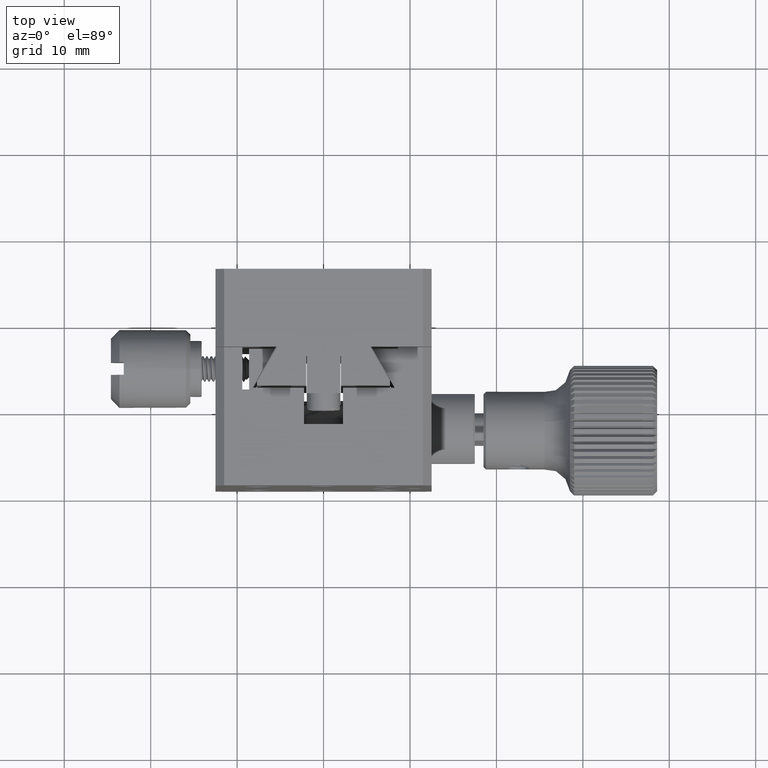
[diagram: clean part render]
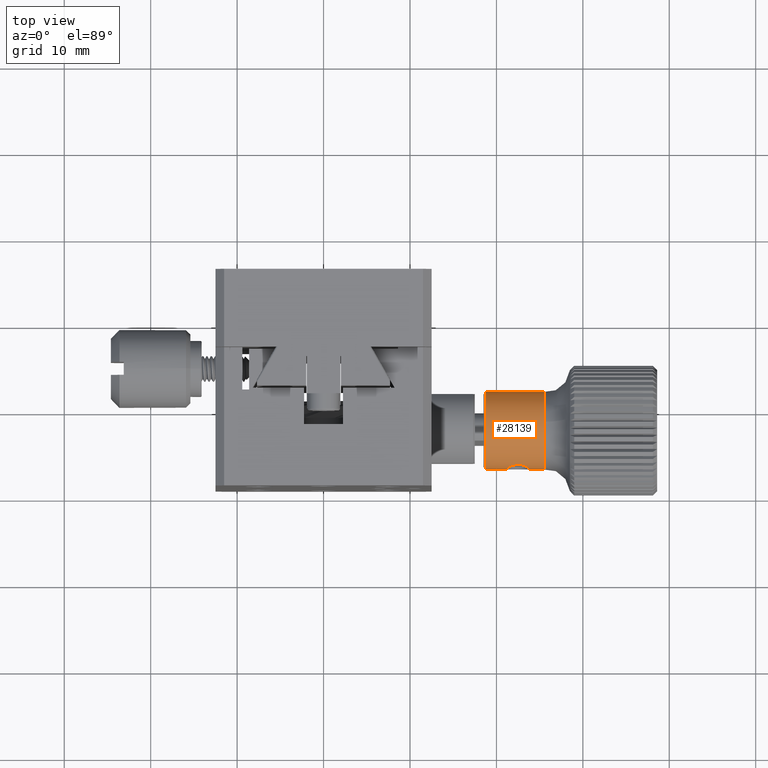
[diagram: same view with one face highlighted and labeled with its STEP entity id]
A machine part, top view. The second image highlights one B-rep face of the part: STEP entity #28139.
In plain terms, the highlighted cylindrical surface (bore or boss wall) has radius 4.5 mm, axis along (-1, -0, 0).
Its self-contained STEP definition (entity closure, byte-faithful):
#2068 = CARTESIAN_POINT ( 'NONE',  ( 21.73082900258667038, 3.198695960936875249, 24.60064122937113851 ) ) ;
#3895 = CARTESIAN_POINT ( 'NONE',  ( 23.05573312317763879, 3.203167324972111540, 24.47271991498990573 ) ) ;
#5593 = CYLINDRICAL_SURFACE ( 'NONE', #42958, 4.499999999999997335 ) ;
#10664 = EDGE_LOOP ( 'NONE', ( #70311 ) ) ;
#10791 = CARTESIAN_POINT ( 'NONE',  ( 21.31382042726533399, 3.405100265035305718, 25.98985563634513341 ) ) ;
#11414 = CARTESIAN_POINT ( 'NONE',  ( 21.73611831937116889, 3.621443848693028045, 26.54660084793151142 ) ) ;
#13643 = B_SPLINE_CURVE_WITH_KNOTS ( 'NONE', 3,
 ( #78590, #30070, #68058, #19527, #2068, #69277, #95457, #106024, #48140, #107251, #20742, #104798, #10791, #58706, #96691, #86105, #11414, #38784, #87342, #56864, #57489, #77987, #76772, #114758, #29466, #115960, #30662, #68662, #67450, #58098, #21361, #59322, #97296, #49976, #33736, #117803, #89766, #109087, #3895, #23192, #119038, #61156 ),
 .UNSPECIFIED., .T., .F.,
 ( 4, 2, 2, 2, 2, 2, 2, 2, 2, 2, 2, 2, 2, 2, 2, 2, 2, 2, 2, 2, 4 ),
 ( 0.000000000000000000, 0.0004907556341355925065, 0.0009815112682711850129, 0.001472266902406777628, 0.001963022536542370026, 0.002208400353610161237, 0.002453778170677952449, 0.002944533804813524464, 0.003189911621881317844, 0.003435289438949111224, 0.003926045073084697551, 0.004416800707220284311, 0.004907556341355871071, 0.005398311975491456964, 0.005889067609627042857, 0.006134445426694836237, 0.006379823243762628750, 0.006870578877898214643, 0.007115956694966000216, 0.007361334512033785790, 0.007852090146169356938 ),
 .UNSPECIFIED. ) ;
#13710 = DIRECTION ( 'NONE',  ( 6.784696261598182364E-14, -1.000000000000000000, 0.000000000000000000 ) ) ;
#19527 = CARTESIAN_POINT ( 'NONE',  ( 21.86892025692947428, 3.201694387121659435, 24.50506663180960487 ) ) ;
#20742 = CARTESIAN_POINT ( 'NONE',  ( 21.25810429607839680, 3.339615704848580169, 25.75974844400690955 ) ) ;
#21361 = CARTESIAN_POINT ( 'NONE',  ( 23.74189496354683726, 3.269972824701068426, 25.43917936928870205 ) ) ;
#23192 = CARTESIAN_POINT ( 'NONE',  ( 22.82975046185351076, 3.207586285930195125, 24.37548958597124482 ) ) ;
#24567 = ORIENTED_EDGE ( 'NONE', *, *, #63617, .T. ) ;
#28139 = ADVANCED_FACE ( 'NONE', ( #89628, #100190, #99592 ), #5593, .T. ) ;
#29466 = CARTESIAN_POINT ( 'NONE',  ( 23.26913077511112604, 3.622700656521437246, 26.55231216771418801 ) ) ;
#30070 = CARTESIAN_POINT ( 'NONE',  ( 22.33399174398874720, 3.210264651161981231, 24.34084615319554601 ) ) ;
#30662 = CARTESIAN_POINT ( 'NONE',  ( 23.59148972492918261, 3.477329246392503403, 26.20726630256423917 ) ) ;
#32966 = EDGE_LOOP ( 'NONE', ( #101944 ) ) ;
#33736 = CARTESIAN_POINT ( 'NONE',  ( 23.49973363805195703, 3.202518795717795186, 24.83582879059461490 ) ) ;
#38784 = CARTESIAN_POINT ( 'NONE',  ( 21.87106452876447094, 3.661637463101097278, 26.63051498182019472 ) ) ;
#42075 = VERTEX_POINT ( 'NONE', #80051 ) ;
#42928 = CARTESIAN_POINT ( 'NONE',  ( 18.50000000001486100, 7.700000000000452260, 24.64461662145724219 ) ) ;
#42958 = AXIS2_PLACEMENT_3D ( 'NONE', #42928, #110779, #13710 ) ;
#48140 = CARTESIAN_POINT ( 'NONE',  ( 21.25016069834818211, 3.267559757734395998, 25.43855916763220293 ) ) ;
#48196 = DIRECTION ( 'NONE',  ( 1.000000000000000000, 6.816766128203799333E-14, -1.004398495345514949E-15 ) ) ;
#49976 = CARTESIAN_POINT ( 'NONE',  ( 23.59172496924891860, 3.209534773372740624, 24.97484515623903789 ) ) ;
#53266 = VERTEX_POINT ( 'NONE', #81281 ) ;
#55086 = EDGE_CURVE ( 'NONE', #118031, #118031, #100809, .T. ) ;
#56864 = CARTESIAN_POINT ( 'NONE',  ( 22.17017905893641583, 3.724184411930340222, 26.75343179928518111 ) ) ;
#57489 = CARTESIAN_POINT ( 'NONE',  ( 22.33389570005247293, 3.740999332348038386, 26.78384865975480622 ) ) ;
#58098 = CARTESIAN_POINT ( 'NONE',  ( 23.75007945861901604, 3.285412435379481355, 25.52104976489258092 ) ) ;
#58706 = CARTESIAN_POINT ( 'NONE',  ( 21.40826089196918502, 3.477276973455889486, 26.20728651731377212 ) ) ;
#59322 = CARTESIAN_POINT ( 'NONE',  ( 23.70987454659528382, 3.244405348297095593, 25.28034221779969215 ) ) ;
#59582 = EDGE_LOOP ( 'NONE', ( #24567 ) ) ;
#61156 = CARTESIAN_POINT ( 'NONE',  ( 22.50000000001516653, 3.210264651161993221, 24.34084615319554246 ) ) ;
#63617 = EDGE_CURVE ( 'NONE', #42075, #42075, #13643, .T. ) ;
#67450 = CARTESIAN_POINT ( 'NONE',  ( 23.74983929422678841, 3.337680824862691686, 25.76132835539189969 ) ) ;
#68058 = CARTESIAN_POINT ( 'NONE',  ( 22.17117968355789870, 3.207604051154970826, 24.37516119793784597 ) ) ;
#68662 = CARTESIAN_POINT ( 'NONE',  ( 23.71653911105756052, 3.382034610514829787, 25.92054656249784372 ) ) ;
#69277 = CARTESIAN_POINT ( 'NONE',  ( 21.50150506578969356, 3.202486266449980690, 24.83446420170056257 ) ) ;
#69398 = DIRECTION ( 'NONE',  ( -1.000000000000000000, -6.816766128203799333E-14, 1.004398495345514949E-15 ) ) ;
#70311 = ORIENTED_EDGE ( 'NONE', *, *, #55086, .T. ) ;
#73922 = EDGE_CURVE ( 'NONE', #53266, #53266, #112465, .T. ) ;
#74684 = AXIS2_PLACEMENT_3D ( 'NONE', #78109, #69398, #116704 ) ;
#76772 = CARTESIAN_POINT ( 'NONE',  ( 22.82874811223848255, 3.724356764741461934, 26.75376048171585097 ) ) ;
#77987 = CARTESIAN_POINT ( 'NONE',  ( 22.66592529405763301, 3.741011097260046547, 26.78387043251592559 ) ) ;
#78109 = CARTESIAN_POINT ( 'NONE',  ( 25.54196010846505160, 7.700000000000931877, 24.64461662145723508 ) ) ;
#78215 = CARTESIAN_POINT ( 'NONE',  ( 18.80000000001516725, 3.200000000000475797, 24.64461662145724219 ) ) ;
#78590 = CARTESIAN_POINT ( 'NONE',  ( 22.50000000001516653, 3.210264651161993221, 24.34084615319554246 ) ) ;
#80051 = CARTESIAN_POINT ( 'NONE',  ( 22.50000000001516653, 3.210264651161992777, 24.34084615319554601 ) ) ;
#81281 = CARTESIAN_POINT ( 'NONE',  ( 25.54196010846499121, 8.655333017410869800, 29.04204073403114705 ) ) ;
#86105 = CARTESIAN_POINT ( 'NONE',  ( 21.67349876227764227, 3.599311808251219436, 26.49875553972163544 ) ) ;
#86160 = DIRECTION ( 'NONE',  ( 6.784696261598182364E-14, -1.000000000000000000, 0.000000000000000000 ) ) ;
#87342 = CARTESIAN_POINT ( 'NONE',  ( 21.94421074744896316, 3.679818337963597141, 26.66679172895061711 ) ) ;
#89628 = FACE_OUTER_BOUND ( 'NONE', #10664, .T. ) ;
#89766 = CARTESIAN_POINT ( 'NONE',  ( 23.26384144426945255, 3.199922712196525243, 24.60629412142779060 ) ) ;
#93051 = CARTESIAN_POINT ( 'NONE',  ( 18.80000000001486171, 7.700000000000472689, 24.64461662145724219 ) ) ;
#95457 = CARTESIAN_POINT ( 'NONE',  ( 21.40849644012139308, 3.209594989522392527, 24.97489445675065411 ) ) ;
#96691 = CARTESIAN_POINT ( 'NONE',  ( 21.50024395149793222, 3.528570687652588411, 26.33667944203672562 ) ) ;
#97296 = CARTESIAN_POINT ( 'NONE',  ( 23.68617391394161231, 3.234079093265146643, 25.20263334519077247 ) ) ;
#99592 = FACE_BOUND ( 'NONE', #59582, .T. ) ;
#100190 = FACE_OUTER_BOUND ( 'NONE', #32966, .T. ) ;
#100809 = CIRCLE ( 'NONE', #112802, 4.499999999999997335 ) ;
#101944 = ORIENTED_EDGE ( 'NONE', *, *, #73922, .T. ) ;
#104798 = CARTESIAN_POINT ( 'NONE',  ( 21.29012187905554754, 3.382254436342006176, 25.91486991532341477 ) ) ;
#106024 = CARTESIAN_POINT ( 'NONE',  ( 21.28345786885716961, 3.241854341307109699, 25.27529712098641568 ) ) ;
#107251 = CARTESIAN_POINT ( 'NONE',  ( 21.24992054513607442, 3.319695421736684082, 25.67885528763242320 ) ) ;
#109087 = CARTESIAN_POINT ( 'NONE',  ( 23.12888476631781387, 3.201676769713154513, 24.51326851117393346 ) ) ;
#110779 = DIRECTION ( 'NONE',  ( -1.000000000000000000, -6.816766128203799333E-14, 1.004398495345514949E-15 ) ) ;
#112465 = CIRCLE ( 'NONE', #74684, 4.500000000000004441 ) ;
#112802 = AXIS2_PLACEMENT_3D ( 'NONE', #93051, #48196, #86160 ) ;
#114758 = CARTESIAN_POINT ( 'NONE',  ( 23.13102972249921052, 3.665083943136282496, 26.63802560392586827 ) ) ;
#115960 = CARTESIAN_POINT ( 'NONE',  ( 23.49847333416226647, 3.529130190603718908, 26.33799114193569224 ) ) ;
#116704 = DIRECTION ( 'NONE',  ( -1.310679959626919671E-14, 0.2122962260910969678, 0.9772053583497574136 ) ) ;
#117803 = CARTESIAN_POINT ( 'NONE',  ( 23.32646574033504905, 3.199636940799555074, 24.65900948438431683 ) ) ;
#118031 = VERTEX_POINT ( 'NONE', #78215 ) ;
#119038 = CARTESIAN_POINT ( 'NONE',  ( 22.66600825604158231, 3.210264651162005212, 24.34084615319553890 ) ) ;